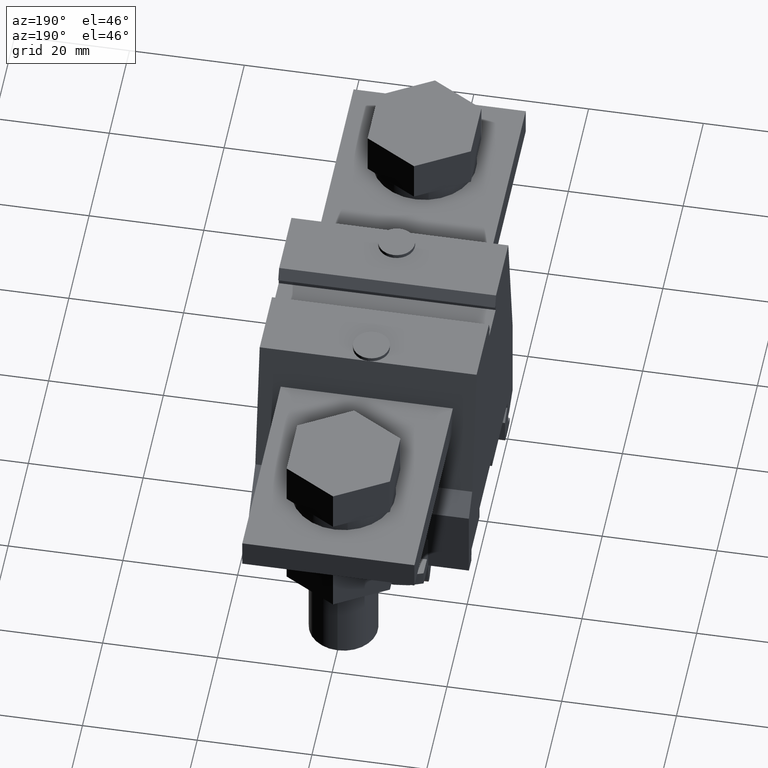
[diagram: clean part render]
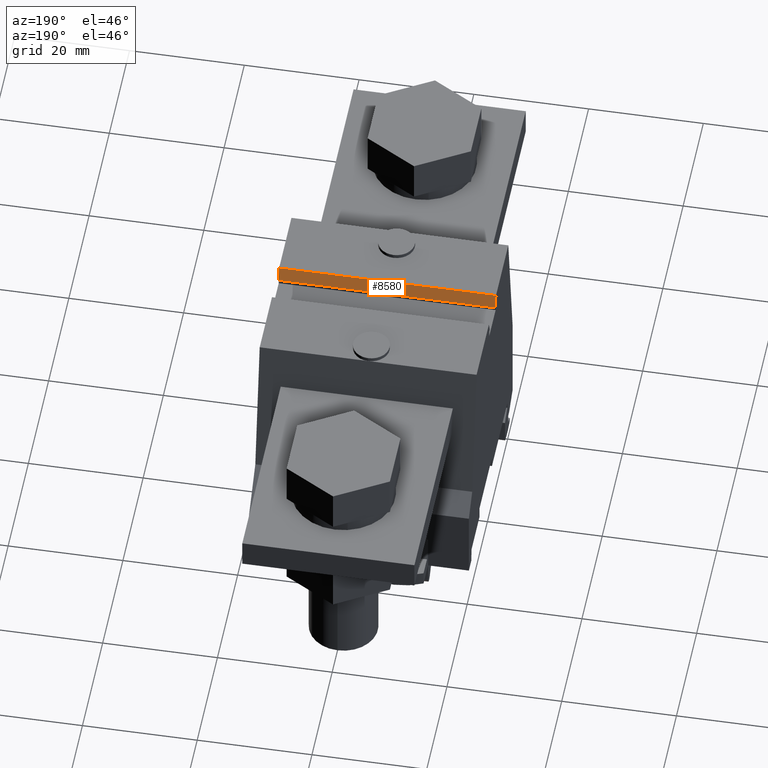
[diagram: same view with one face highlighted and labeled with its STEP entity id]
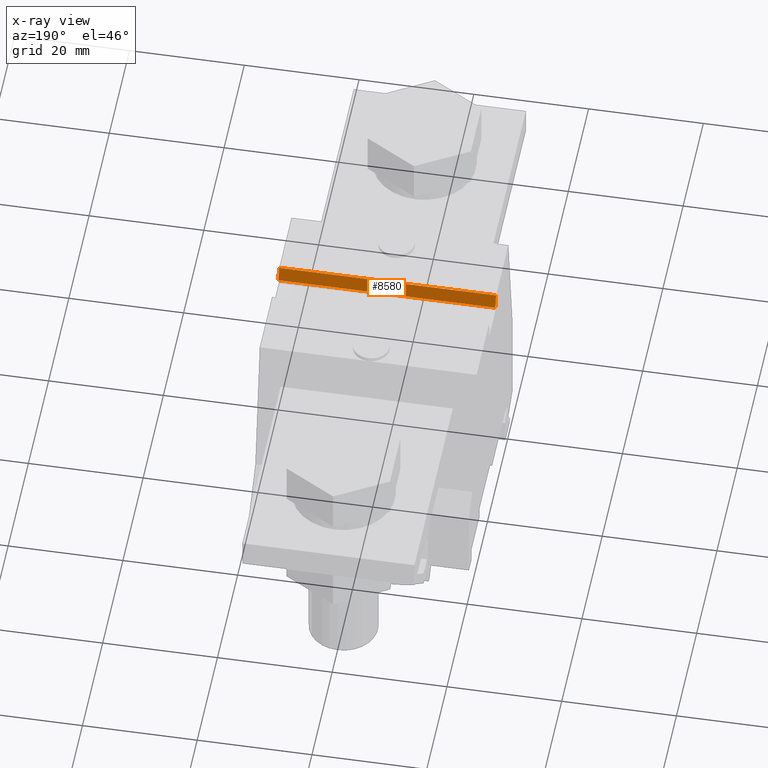
[diagram: x-ray of the same camera — body ghosted, the highlighted face saturated]
A machine part, auxiliary view. The second image highlights one B-rep face of the part: STEP entity #8580.
The next image is the same camera in x-ray: the body ghosted, the highlighted face saturated — about 0% of this face is hidden behind the body in this view.
In plain terms, the highlighted planar face has unit normal (0, 0.9205, 0.3908).
Its self-contained STEP definition (entity closure, byte-faithful):
#200=CARTESIAN_POINT('',(-95.770093884536,413.574377855495,2.6));
#210=VERTEX_POINT('',#200);
#240=CARTESIAN_POINT('',(-271.384371718405,0.,2.6));
#250=DIRECTION('',(0.390848743748418,0.920454919868585,0.));
#260=VECTOR('',#250,1.);
#270=LINE('',#240,#260);
#280=CARTESIAN_POINT('',(-96.6703002051942,411.454377855495,2.6));
#290=VERTEX_POINT('',#280);
#300=EDGE_CURVE('',#290,#210,#270,.T.);
#5150=CARTESIAN_POINT('',(-96.6703002051942,411.454377855495,40.4));
#5160=VERTEX_POINT('',#5150);
#5190=CARTESIAN_POINT('',(-271.384371718405,0.,40.4));
#5200=DIRECTION('',(-0.390848743748418,-0.920454919868585,0.));
#5210=VECTOR('',#5200,1.);
#5220=LINE('',#5190,#5210);
#5230=CARTESIAN_POINT('',(-95.770093884536,413.574377855495,40.4));
#5240=VERTEX_POINT('',#5230);
#5250=EDGE_CURVE('',#5240,#5160,#5220,.T.);
#8370=CARTESIAN_POINT('',(-96.5698999027724,411.690822141932,0.));
#8380=DIRECTION('',(-0.920454919868585,0.390848743748418,0.));
#8390=DIRECTION('',(0.390848743748418,0.920454919868585,0.));
#8400=AXIS2_PLACEMENT_3D('',#8370,#8380,#8390);
#8410=PLANE('',#8400);
#8420=ORIENTED_EDGE('',*,*,#300,.F.);
#8430=CARTESIAN_POINT('',(-95.7700938845361,413.574377855495,0.));
#8440=DIRECTION('',(0.,0.,-1.));
#8450=VECTOR('',#8440,1.);
#8460=LINE('',#8430,#8450);
#8470=EDGE_CURVE('',#5240,#210,#8460,.T.);
#8480=ORIENTED_EDGE('',*,*,#8470,.T.);
#8490=ORIENTED_EDGE('',*,*,#5250,.F.);
#8500=CARTESIAN_POINT('',(-96.6703002051943,411.454377855495,0.));
#8510=DIRECTION('',(0.,0.,-1.));
#8520=VECTOR('',#8510,1.);
#8530=LINE('',#8500,#8520);
#8540=EDGE_CURVE('',#5160,#290,#8530,.T.);
#8550=ORIENTED_EDGE('',*,*,#8540,.F.);
#8560=EDGE_LOOP('',(#8550,#8490,#8480,#8420));
#8570=FACE_OUTER_BOUND('',#8560,.T.);
#8580=ADVANCED_FACE('',(#8570),#8410,.T.);